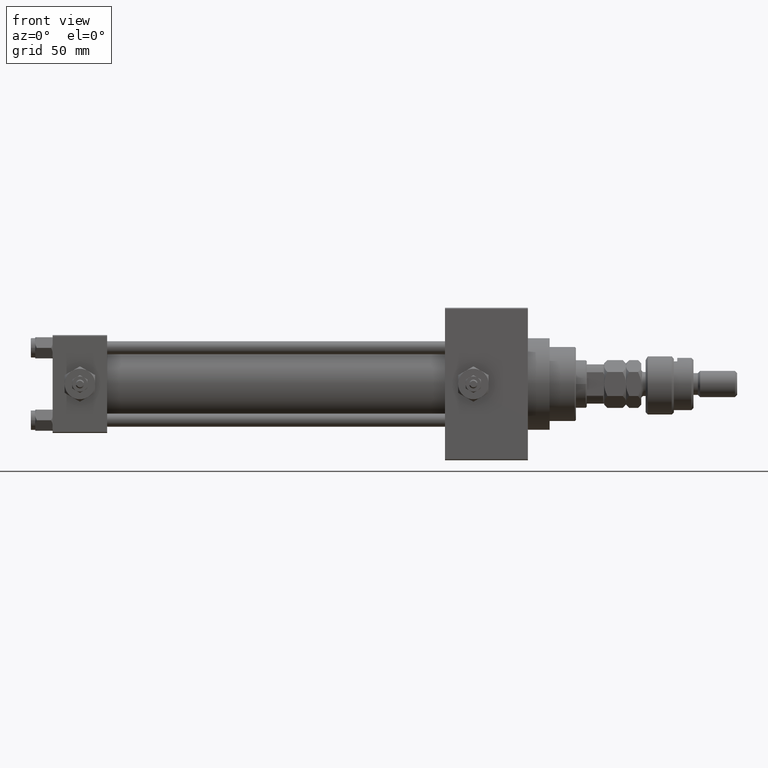
[diagram: clean part render]
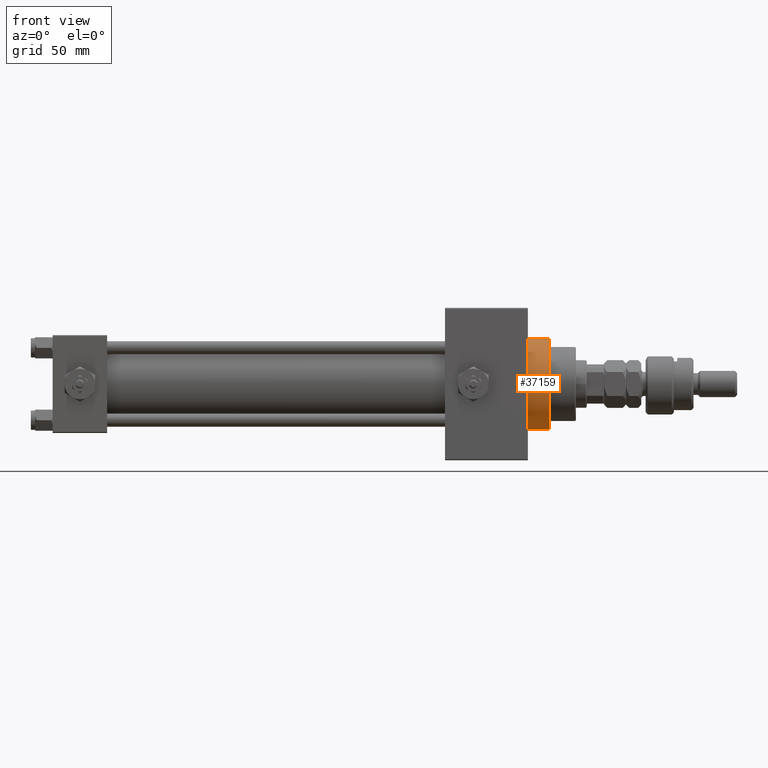
[diagram: same view with one face highlighted and labeled with its STEP entity id]
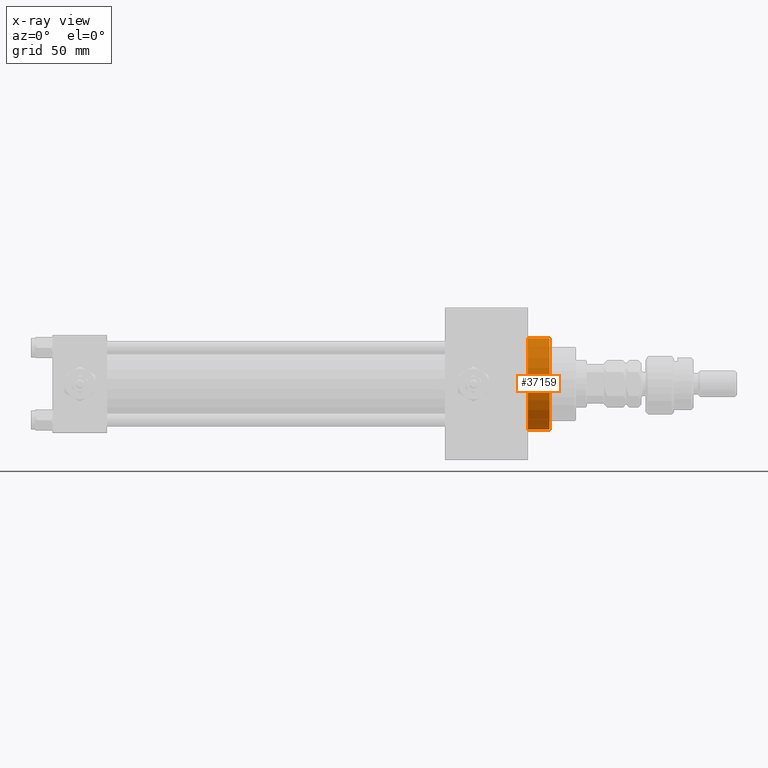
[diagram: x-ray of the same camera — body ghosted, the highlighted face saturated]
A machine part, front view. The second image highlights one B-rep face of the part: STEP entity #37159.
The next image is the same camera in x-ray: the body ghosted, the highlighted face saturated — about 0% of this face is hidden behind the body in this view.
In plain terms, the highlighted cylindrical surface (partial cylindrical patch) has radius 21 mm, axis along (-1, -0, -0).
Its self-contained STEP definition (entity closure, byte-faithful):
#3968 = DIRECTION ( 'NONE',  ( 1.000000000000000000, 0.000000000000000000, 0.000000000000000000 ) ) ;
#4118 = LINE ( 'NONE', #4374, #47020 ) ;
#4123 = CARTESIAN_POINT ( 'NONE',  ( 228.0000000000000000, 0.000000000000000000, 0.000000000000000000 ) ) ;
#4374 = CARTESIAN_POINT ( 'NONE',  ( 228.0000000000000000, 0.000000000000000000, 21.00000000000000000 ) ) ;
#4637 = DIRECTION ( 'NONE',  ( 0.000000000000000000, 0.000000000000000000, 1.000000000000000000 ) ) ;
#4897 = DIRECTION ( 'NONE',  ( -1.000000000000000000, -0.000000000000000000, -0.000000000000000000 ) ) ;
#5186 = EDGE_LOOP ( 'NONE', ( #38017, #20295, #43157, #50670 ) ) ;
#10367 = CARTESIAN_POINT ( 'NONE',  ( 228.0000000000000000, 2.571758278209441661E-15, -21.00000000000000000 ) ) ;
#10385 = VECTOR ( 'NONE', #16494, 1000.000000000000000 ) ;
#11859 = AXIS2_PLACEMENT_3D ( 'NONE', #45321, #37965, #13569 ) ;
#13569 = DIRECTION ( 'NONE',  ( 0.000000000000000000, 0.000000000000000000, -1.000000000000000000 ) ) ;
#15034 = CARTESIAN_POINT ( 'NONE',  ( 218.0000000000000000, 0.000000000000000000, 0.000000000000000000 ) ) ;
#15133 = EDGE_CURVE ( 'NONE', #26314, #37008, #18946, .T. ) ;
#16494 = DIRECTION ( 'NONE',  ( -1.000000000000000000, -0.000000000000000000, -0.000000000000000000 ) ) ;
#18946 = CIRCLE ( 'NONE', #48258, 21.00000000000000000 ) ;
#20295 = ORIENTED_EDGE ( 'NONE', *, *, #42253, .F. ) ;
#20412 = CYLINDRICAL_SURFACE ( 'NONE', #51036, 21.00000000000000000 ) ;
#21082 = CIRCLE ( 'NONE', #11859, 21.00000000000000000 ) ;
#21089 = VERTEX_POINT ( 'NONE', #27853 ) ;
#26207 = CARTESIAN_POINT ( 'NONE',  ( 218.0000000000000000, 2.571758278209441661E-15, -21.00000000000000000 ) ) ;
#26314 = VERTEX_POINT ( 'NONE', #28919 ) ;
#27853 = CARTESIAN_POINT ( 'NONE',  ( 228.0000000000000000, 0.000000000000000000, 21.00000000000000000 ) ) ;
#28919 = CARTESIAN_POINT ( 'NONE',  ( 218.0000000000000000, 0.000000000000000000, 21.00000000000000000 ) ) ;
#37008 = VERTEX_POINT ( 'NONE', #26207 ) ;
#37159 = ADVANCED_FACE ( 'NONE', ( #40073 ), #20412, .T. ) ;
#37965 = DIRECTION ( 'NONE',  ( 1.000000000000000000, 0.000000000000000000, 0.000000000000000000 ) ) ;
#38017 = ORIENTED_EDGE ( 'NONE', *, *, #51191, .F. ) ;
#38901 = VERTEX_POINT ( 'NONE', #10367 ) ;
#40073 = FACE_OUTER_BOUND ( 'NONE', #5186, .T. ) ;
#40871 = CARTESIAN_POINT ( 'NONE',  ( 228.0000000000000000, 2.571758278209441661E-15, -21.00000000000000000 ) ) ;
#41217 = EDGE_CURVE ( 'NONE', #21089, #26314, #4118, .T. ) ;
#42253 = EDGE_CURVE ( 'NONE', #21089, #38901, #21082, .T. ) ;
#43157 = ORIENTED_EDGE ( 'NONE', *, *, #41217, .T. ) ;
#45073 = LINE ( 'NONE', #40871, #10385 ) ;
#45321 = CARTESIAN_POINT ( 'NONE',  ( 228.0000000000000000, 0.000000000000000000, 0.000000000000000000 ) ) ;
#47020 = VECTOR ( 'NONE', #51865, 1000.000000000000000 ) ;
#47808 = DIRECTION ( 'NONE',  ( 0.000000000000000000, 0.000000000000000000, -1.000000000000000000 ) ) ;
#48258 = AXIS2_PLACEMENT_3D ( 'NONE', #15034, #3968, #47808 ) ;
#50670 = ORIENTED_EDGE ( 'NONE', *, *, #15133, .T. ) ;
#51036 = AXIS2_PLACEMENT_3D ( 'NONE', #4123, #4897, #4637 ) ;
#51191 = EDGE_CURVE ( 'NONE', #38901, #37008, #45073, .T. ) ;
#51865 = DIRECTION ( 'NONE',  ( -1.000000000000000000, -0.000000000000000000, -0.000000000000000000 ) ) ;